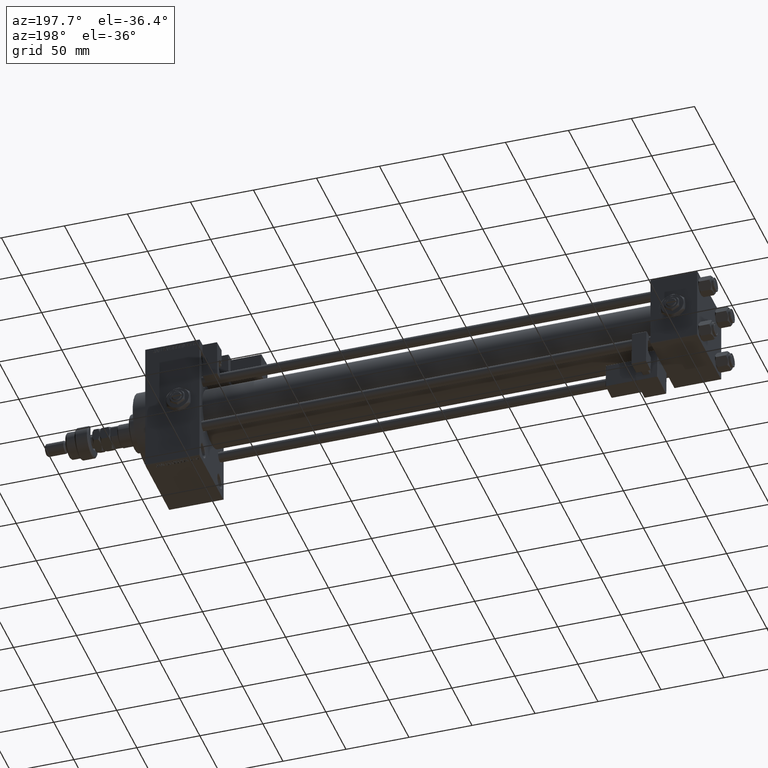
[diagram: clean part render]
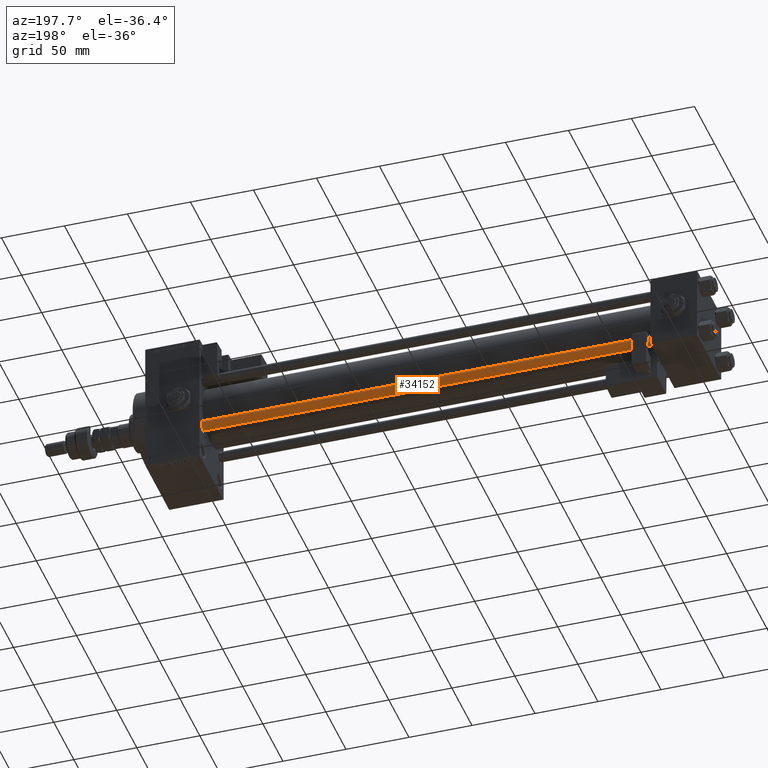
[diagram: same view with one face highlighted and labeled with its STEP entity id]
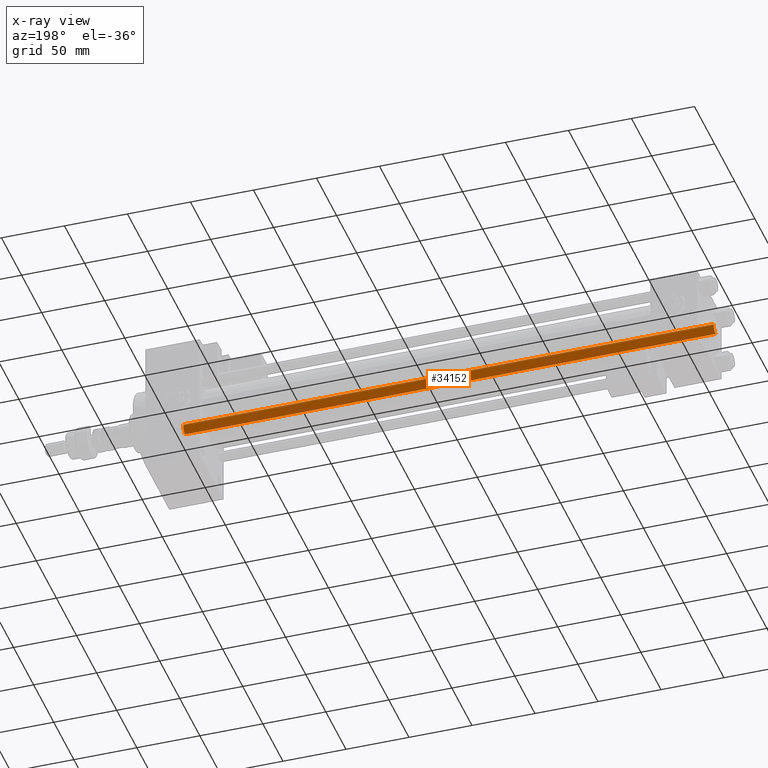
[diagram: x-ray of the same camera — body ghosted, the highlighted face saturated]
A machine part, auxiliary view. The second image highlights one B-rep face of the part: STEP entity #34152.
The next image is the same camera in x-ray: the body ghosted, the highlighted face saturated — about 0% of this face is hidden behind the body in this view.
In plain terms, the highlighted cylindrical surface (edge-blend (fillet) strip) has radius 4 mm, axis along (1, -0, 0).
Its self-contained STEP definition (entity closure, byte-faithful):
#5192 = VERTEX_POINT ( 'NONE', #15834 ) ;
#6947 = CIRCLE ( 'NONE', #26197, 4.000000000000000000 ) ;
#7324 = LINE ( 'NONE', #37526, #41567 ) ;
#7770 = FACE_OUTER_BOUND ( 'NONE', #13291, .T. ) ;
#7990 = CARTESIAN_POINT ( 'NONE',  ( -4.000000000000000000, 0.000000000000000000, 421.4999999999999432 ) ) ;
#8408 = DIRECTION ( 'NONE',  ( -0.000000000000000000, -0.000000000000000000, -1.000000000000000000 ) ) ;
#8786 = DIRECTION ( 'NONE',  ( 0.000000000000000000, 0.000000000000000000, -1.000000000000000000 ) ) ;
#9418 = VERTEX_POINT ( 'NONE', #42889 ) ;
#12149 = CIRCLE ( 'NONE', #20045, 4.000000000000000000 ) ;
#13291 = EDGE_LOOP ( 'NONE', ( #19036, #52203, #46618, #39062 ) ) ;
#15729 = DIRECTION ( 'NONE',  ( 1.000000000000000000, 0.000000000000000000, 0.000000000000000000 ) ) ;
#15834 = CARTESIAN_POINT ( 'NONE',  ( -4.000000000000000000, 0.000000000000000000, 0.5000000000001114664 ) ) ;
#16539 = CYLINDRICAL_SURFACE ( 'NONE', #28880, 4.000000000000000000 ) ;
#19036 = ORIENTED_EDGE ( 'NONE', *, *, #33639, .T. ) ;
#19943 = DIRECTION ( 'NONE',  ( -0.000000000000000000, -0.000000000000000000, -1.000000000000000000 ) ) ;
#20045 = AXIS2_PLACEMENT_3D ( 'NONE', #36072, #32474, #15729 ) ;
#20180 = EDGE_CURVE ( 'NONE', #25749, #5192, #41109, .T. ) ;
#22024 = VERTEX_POINT ( 'NONE', #33798 ) ;
#24500 = DIRECTION ( 'NONE',  ( -0.000000000000000000, -0.000000000000000000, -1.000000000000000000 ) ) ;
#25325 = CARTESIAN_POINT ( 'NONE',  ( 0.000000000000000000, 0.000000000000000000, 422.0000000000000000 ) ) ;
#25749 = VERTEX_POINT ( 'NONE', #7990 ) ;
#26197 = AXIS2_PLACEMENT_3D ( 'NONE', #38974, #8786, #42034 ) ;
#28880 = AXIS2_PLACEMENT_3D ( 'NONE', #25325, #24500, #33282 ) ;
#28996 = CARTESIAN_POINT ( 'NONE',  ( -4.000000000000000000, 0.000000000000000000, 422.0000000000000000 ) ) ;
#29508 = VECTOR ( 'NONE', #19943, 1000.000000000000000 ) ;
#32474 = DIRECTION ( 'NONE',  ( -0.000000000000000000, -0.000000000000000000, 1.000000000000000000 ) ) ;
#33282 = DIRECTION ( 'NONE',  ( -1.000000000000000000, 0.000000000000000000, 0.000000000000000000 ) ) ;
#33639 = EDGE_CURVE ( 'NONE', #25749, #22024, #6947, .T. ) ;
#33798 = CARTESIAN_POINT ( 'NONE',  ( 4.000000000000000000, 4.898587196589412829E-16, 421.4999999999999432 ) ) ;
#34152 = ADVANCED_FACE ( 'NONE', ( #7770 ), #16539, .T. ) ;
#36072 = CARTESIAN_POINT ( 'NONE',  ( 0.000000000000000000, 0.000000000000000000, 0.5000000000001114664 ) ) ;
#37526 = CARTESIAN_POINT ( 'NONE',  ( 4.000000000000000000, 4.898587196589412829E-16, 422.0000000000000000 ) ) ;
#38974 = CARTESIAN_POINT ( 'NONE',  ( 0.000000000000000000, 0.000000000000000000, 421.4999999999999432 ) ) ;
#39062 = ORIENTED_EDGE ( 'NONE', *, *, #20180, .F. ) ;
#41109 = LINE ( 'NONE', #28996, #29508 ) ;
#41567 = VECTOR ( 'NONE', #8408, 1000.000000000000000 ) ;
#42034 = DIRECTION ( 'NONE',  ( 1.000000000000000000, 0.000000000000000000, 0.000000000000000000 ) ) ;
#42889 = CARTESIAN_POINT ( 'NONE',  ( 4.000000000000000000, 4.898587196589412829E-16, 0.5000000000001114664 ) ) ;
#46378 = EDGE_CURVE ( 'NONE', #22024, #9418, #7324, .T. ) ;
#46618 = ORIENTED_EDGE ( 'NONE', *, *, #52778, .T. ) ;
#52203 = ORIENTED_EDGE ( 'NONE', *, *, #46378, .T. ) ;
#52778 = EDGE_CURVE ( 'NONE', #9418, #5192, #12149, .T. ) ;